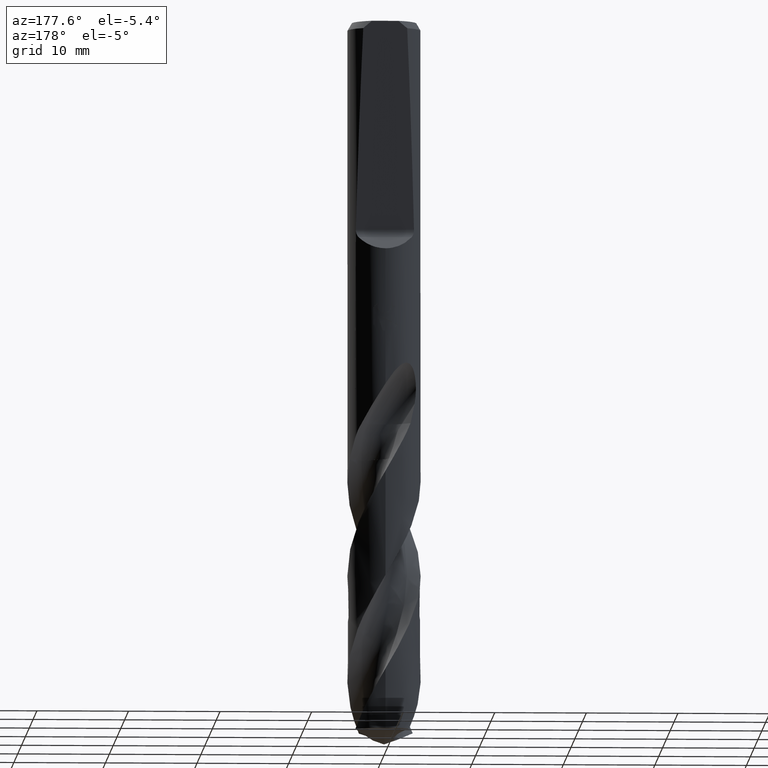
[diagram: clean part render]
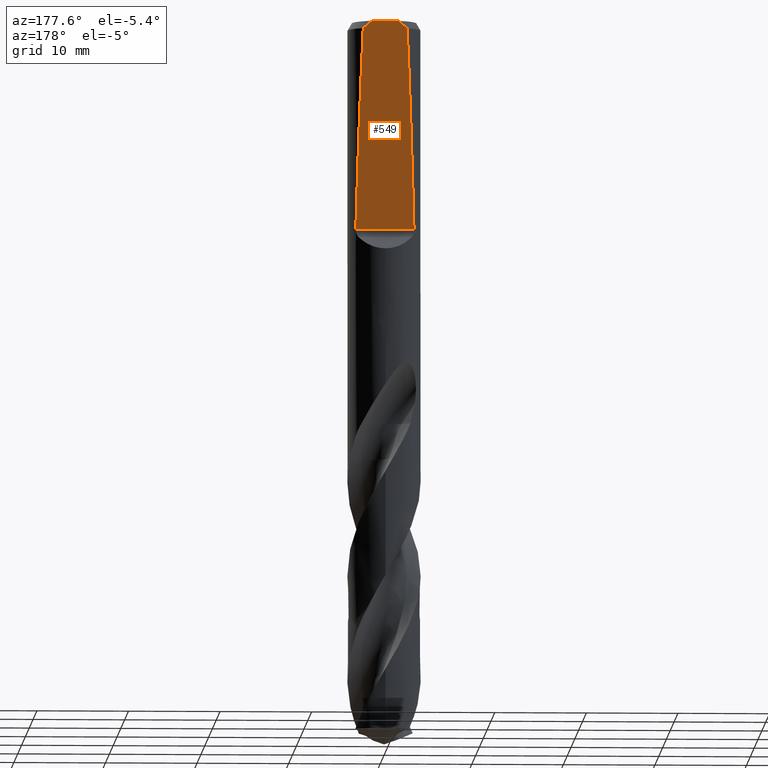
[diagram: same view with one face highlighted and labeled with its STEP entity id]
A machine part, auxiliary view. The second image highlights one B-rep face of the part: STEP entity #549.
In plain terms, the highlighted planar face has unit normal (0, -0.9994, 0.0349).
Its self-contained STEP definition (entity closure, byte-faithful):
#303=VERTEX_POINT('',#834);
#329=VERTEX_POINT('',#863);
#377=EDGE_CURVE('',#303,#703,#914,.T.);
#437=EDGE_CURVE('',#703,#687,#977,.T.);
#449=VERTEX_POINT('',#991);
#549=ADVANCED_FACE('',(#1101),#1102,.F.);
#615=EDGE_CURVE('',#329,#449,#1175,.T.);
#621=VERTEX_POINT('',#1181);
#671=EDGE_CURVE('',#449,#303,#1238,.T.);
#681=EDGE_CURVE('',#621,#329,#1251,.T.);
#687=VERTEX_POINT('',#1258);
#703=VERTEX_POINT('',#1276);
#739=EDGE_CURVE('',#687,#621,#1314,.T.);
#834=CARTESIAN_POINT('',(1.44727416204323,3.22857385085146,0.0));
#863=CARTESIAN_POINT('',(3.17557583065469,2.43222493691719,-22.8044492009967));
#914=LINE('',#2919,#2920);
#977=(B_SPLINE_CURVE(2,(#3712,#3713,#3714),.UNSPECIFIED.,.F.,.F.)B_SPLINE_CURVE_WITH_KNOTS((3,3),(0.0,1.24509248814237),.UNSPECIFIED.)RATIONAL_B_SPLINE_CURVE((1.0,1.00726161475639,1.0))BOUNDED_CURVE()REPRESENTATION_ITEM('')GEOMETRIC_REPRESENTATION_ITEM()CURVE());
#991=CARTESIAN_POINT('',(2.39915011791252,3.20063723525806,-0.799999999999997));
#1101=FACE_OUTER_BOUND('',#5531,.T.);
#1102=PLANE('',#5532);
#1175=ELLIPSE('',#6369,114.614833391376,4.0);
#1181=CARTESIAN_POINT('',(-3.17557583065469,2.43222493691719,-22.8044492009967));
#1238=(B_SPLINE_CURVE(2,(#6758,#6759,#6760),.UNSPECIFIED.,.F.,.F.)B_SPLINE_CURVE_WITH_KNOTS((3,3),(0.0,1.24509248814237),.UNSPECIFIED.)RATIONAL_B_SPLINE_CURVE((1.0,1.00726161475639,1.0))BOUNDED_CURVE()REPRESENTATION_ITEM('')GEOMETRIC_REPRESENTATION_ITEM()CURVE());
#1251=LINE('',#6835,#6836);
#1258=CARTESIAN_POINT('',(-2.39915011791252,3.20063723525806,-0.799999999999997));
#1276=CARTESIAN_POINT('',(-1.44727416204323,3.22857385085146,0.0));
#1314=ELLIPSE('',#7350,114.614833391376,4.0);
#2919=CARTESIAN_POINT('',(-2.0,3.22857385085146,1.77635683940025E-015));
#2920=VECTOR('',#8015,1.0);
#3712=CARTESIAN_POINT('',(-1.44727416204323,3.22857385085146,1.11022302462516E-016));
#3713=CARTESIAN_POINT('',(-1.89558220846588,3.21806228504891,-0.301011860721693));
#3714=CARTESIAN_POINT('',(-2.39915011791252,3.20063723525806,-0.799999999999997));
#5531=EDGE_LOOP('',(#8166,#8167,#8168,#8169,#8170,#8171));
#5532=AXIS2_PLACEMENT_3D('',#8172,#8173,#8174);
#6369=AXIS2_PLACEMENT_3D('',#8267,#8268,#8269);
#6758=CARTESIAN_POINT('',(2.39915011791252,3.20063723525806,-0.799999999999997));
#6759=CARTESIAN_POINT('',(1.89558220846588,3.21806228504891,-0.301011860721693));
#6760=CARTESIAN_POINT('',(1.44727416204323,3.22857385085146,1.11022302462516E-016));
#6835=CARTESIAN_POINT('',(-4.0,2.43222493691719,-22.8044492009967));
#6836=VECTOR('',#8395,1.0);
#7350=AXIS2_PLACEMENT_3D('',#8466,#8467,#8468);
#8015=DIRECTION('',(-1.0,0.0,0.0));
#8166=ORIENTED_EDGE('',*,*,#739,.F.);
#8167=ORIENTED_EDGE('',*,*,#437,.F.);
#8168=ORIENTED_EDGE('',*,*,#377,.F.);
#8169=ORIENTED_EDGE('',*,*,#671,.F.);
#8170=ORIENTED_EDGE('',*,*,#615,.F.);
#8171=ORIENTED_EDGE('',*,*,#681,.F.);
#8172=CARTESIAN_POINT('',(-4.0,2.43222493691719,-22.8044492009967));
#8173=DIRECTION('',(0.0,-0.999390827019096,0.0348994967025007));
#8174=DIRECTION('',(0.0,-0.0348994967025007,-0.999390827019096));
#8267=CARTESIAN_POINT('',(0.0,0.0,-92.4542585355811));
#8268=DIRECTION('',(0.0,-0.999390827019096,0.0348994967025007));
#8269=DIRECTION('',(0.0,0.0348994967025007,0.999390827019096));
#8395=DIRECTION('',(1.0,0.0,0.0));
#8466=CARTESIAN_POINT('',(0.0,0.0,-92.4542585355811));
#8467=DIRECTION('',(0.0,-0.999390827019096,0.0348994967025007));
#8468=DIRECTION('',(0.0,0.0348994967025007,0.999390827019096));